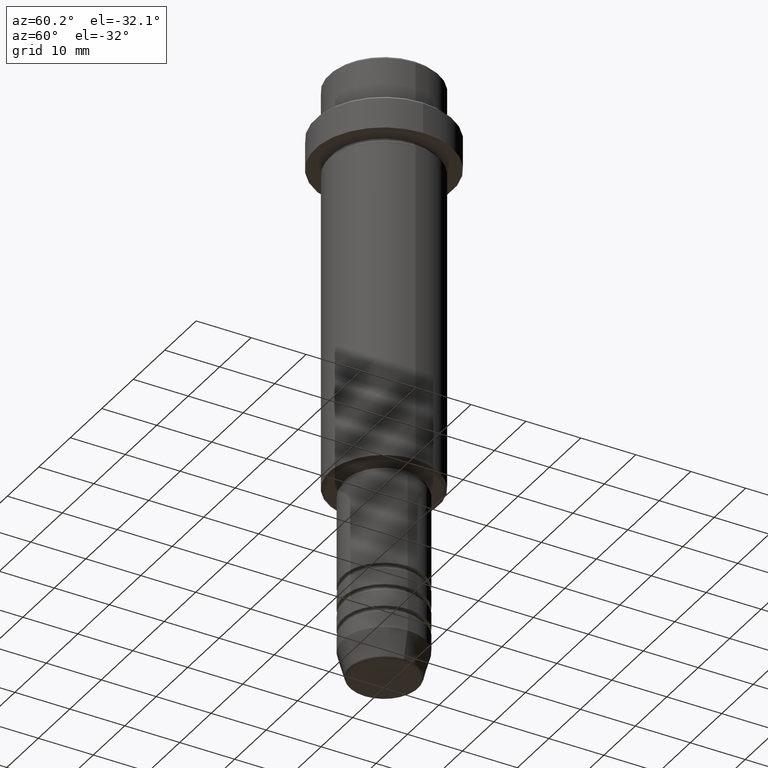
[diagram: clean part render]
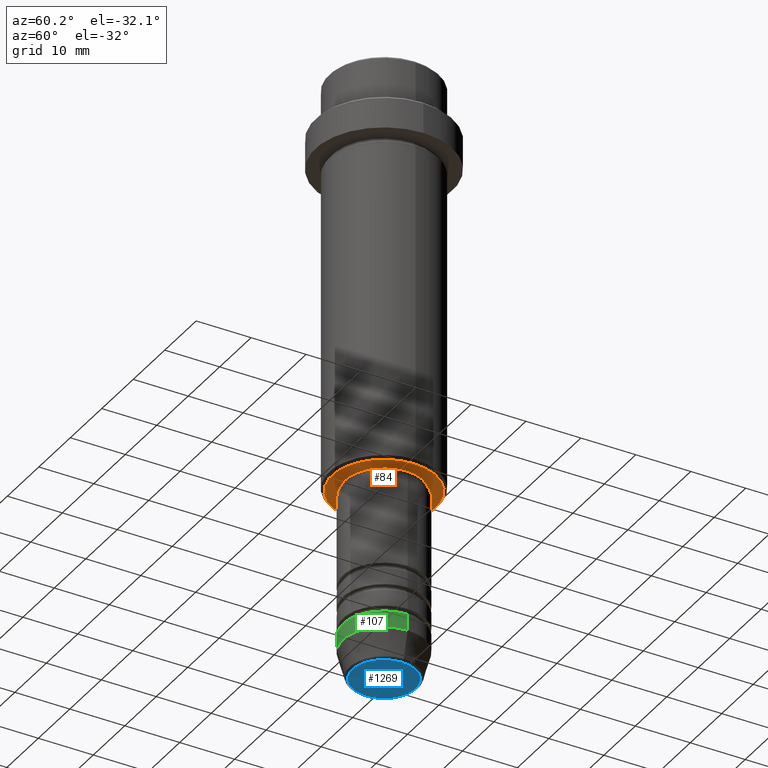
[diagram: same view with three faces highlighted in distinct colors, each labeled with its STEP entity id]
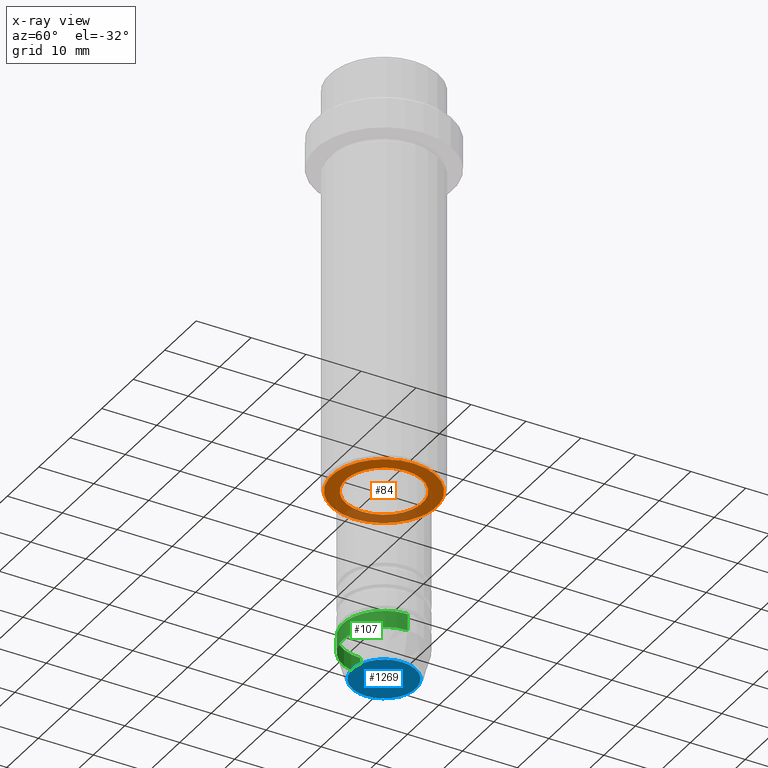
[diagram: x-ray of the same camera — body ghosted, the three highlighted faces saturated]
A machine part, auxiliary view with three faces highlighted in distinct colors.
The next image is the same camera in x-ray (body ghosted, the three faces saturated) — at least one of them is partly hidden behind the body in this view.
Their STEP definitions:

[orange] entity #84 — the highlighted planar face has unit normal (0, 0, -1).
#42 = DIRECTION ( 'NONE',  ( -1.000000000000000000, 0.000000000000000000, 0.000000000000000000 ) ) ;
#64 = AXIS2_PLACEMENT_3D ( 'NONE', #408, #655, #758 ) ;
#66 = ORIENTED_EDGE ( 'NONE', *, *, #178, .T. ) ;
#70 = EDGE_LOOP ( 'NONE', ( #617, #66 ) ) ;
#84 = ADVANCED_FACE ( 'NONE', ( #389, #1277 ), #175, .T. ) ;
#87 = CARTESIAN_POINT ( 'NONE',  ( 6.999999999999993783, 0.000000000000000000, -75.00000000000001421 ) ) ;
#175 = PLANE ( 'NONE',  #1318 ) ;
#178 = EDGE_CURVE ( 'NONE', #1312, #1246, #903, .T. ) ;
#213 = CIRCLE ( 'NONE', #64, 6.999999999999993783 ) ;
#274 = AXIS2_PLACEMENT_3D ( 'NONE', #442, #765, #426 ) ;
#278 = ORIENTED_EDGE ( 'NONE', *, *, #1368, .T. ) ;
#331 = EDGE_CURVE ( 'NONE', #1246, #1312, #944, .T. ) ;
#332 = DIRECTION ( 'NONE',  ( 0.000000000000000000, 0.000000000000000000, -1.000000000000000000 ) ) ;
#389 = FACE_OUTER_BOUND ( 'NONE', #70, .T. ) ;
#408 = CARTESIAN_POINT ( 'NONE',  ( 0.000000000000000000, 0.000000000000000000, -75.00000000000001421 ) ) ;
#413 = DIRECTION ( 'NONE',  ( -0.000000000000000000, -0.000000000000000000, 1.000000000000000000 ) ) ;
#424 = AXIS2_PLACEMENT_3D ( 'NONE', #1199, #413, #1087 ) ;
#426 = DIRECTION ( 'NONE',  ( -1.000000000000000000, 0.000000000000000000, 0.000000000000000000 ) ) ;
#438 = AXIS2_PLACEMENT_3D ( 'NONE', #1328, #332, #42 ) ;
#442 = CARTESIAN_POINT ( 'NONE',  ( 0.000000000000000000, 0.000000000000000000, -75.00000000000001421 ) ) ;
#502 = DIRECTION ( 'NONE',  ( 0.000000000000000000, 0.000000000000000000, -1.000000000000000000 ) ) ;
#588 = VERTEX_POINT ( 'NONE', #87 ) ;
#617 = ORIENTED_EDGE ( 'NONE', *, *, #331, .T. ) ;
#655 = DIRECTION ( 'NONE',  ( -0.000000000000000000, -0.000000000000000000, 1.000000000000000000 ) ) ;
#690 = CARTESIAN_POINT ( 'NONE',  ( -6.999999999999993783, 8.572527594031465301E-16, -75.00000000000001421 ) ) ;
#750 = CARTESIAN_POINT ( 'NONE',  ( -9.499999999999994671, 1.194030629168669075E-15, -75.00000000000001421 ) ) ;
#758 = DIRECTION ( 'NONE',  ( 1.000000000000000000, 0.000000000000000000, 0.000000000000000000 ) ) ;
#765 = DIRECTION ( 'NONE',  ( 0.000000000000000000, 0.000000000000000000, -1.000000000000000000 ) ) ;
#801 = CARTESIAN_POINT ( 'NONE',  ( 9.499999999999994671, 0.000000000000000000, -75.00000000000001421 ) ) ;
#903 = CIRCLE ( 'NONE', #274, 9.499999999999994671 ) ;
#935 = EDGE_LOOP ( 'NONE', ( #278, #1382 ) ) ;
#944 = CIRCLE ( 'NONE', #438, 9.499999999999994671 ) ;
#946 = DIRECTION ( 'NONE',  ( -1.000000000000000000, 0.000000000000000000, -0.000000000000000000 ) ) ;
#1048 = CIRCLE ( 'NONE', #424, 6.999999999999993783 ) ;
#1056 = CARTESIAN_POINT ( 'NONE',  ( 0.000000000000000000, 10.00000000000000000, -75.00000000000001421 ) ) ;
#1087 = DIRECTION ( 'NONE',  ( 1.000000000000000000, 0.000000000000000000, 0.000000000000000000 ) ) ;
#1145 = EDGE_CURVE ( 'NONE', #1280, #588, #1048, .T. ) ;
#1199 = CARTESIAN_POINT ( 'NONE',  ( 0.000000000000000000, 0.000000000000000000, -75.00000000000001421 ) ) ;
#1246 = VERTEX_POINT ( 'NONE', #801 ) ;
#1277 = FACE_BOUND ( 'NONE', #935, .T. ) ;
#1280 = VERTEX_POINT ( 'NONE', #690 ) ;
#1312 = VERTEX_POINT ( 'NONE', #750 ) ;
#1318 = AXIS2_PLACEMENT_3D ( 'NONE', #1056, #502, #946 ) ;
#1328 = CARTESIAN_POINT ( 'NONE',  ( 0.000000000000000000, 0.000000000000000000, -75.00000000000001421 ) ) ;
#1368 = EDGE_CURVE ( 'NONE', #588, #1280, #213, .T. ) ;
#1382 = ORIENTED_EDGE ( 'NONE', *, *, #1145, .T. ) ;

[blue] entity #1269 — the highlighted planar face has unit normal (0, -0, 1).
#30 = DIRECTION ( 'NONE',  ( 0.000000000000000000, 0.000000000000000000, -1.000000000000000000 ) ) ;
#41 = CIRCLE ( 'NONE', #634, 5.776590543854901227 ) ;
#125 = DIRECTION ( 'NONE',  ( 0.000000000000000000, -0.000000000000000000, 1.000000000000000000 ) ) ;
#148 = VERTEX_POINT ( 'NONE', #211 ) ;
#211 = CARTESIAN_POINT ( 'NONE',  ( 5.776590543854901227, 0.000000000000000000, -110.0000000000000142 ) ) ;
#320 = EDGE_LOOP ( 'NONE', ( #788, #469 ) ) ;
#334 = DIRECTION ( 'NONE',  ( 1.000000000000000000, 0.000000000000000000, 0.000000000000000000 ) ) ;
#436 = DIRECTION ( 'NONE',  ( 1.000000000000000000, 0.000000000000000000, 0.000000000000000000 ) ) ;
#445 = CIRCLE ( 'NONE', #820, 5.776590543854901227 ) ;
#469 = ORIENTED_EDGE ( 'NONE', *, *, #1211, .T. ) ;
#535 = AXIS2_PLACEMENT_3D ( 'NONE', #674, #125, #1001 ) ;
#556 = VERTEX_POINT ( 'NONE', #1155 ) ;
#634 = AXIS2_PLACEMENT_3D ( 'NONE', #785, #30, #334 ) ;
#674 = CARTESIAN_POINT ( 'NONE',  ( 0.000000000000000000, 0.000000000000000000, -110.0000000000000142 ) ) ;
#785 = CARTESIAN_POINT ( 'NONE',  ( 0.000000000000000000, 0.000000000000000000, -110.0000000000000142 ) ) ;
#788 = ORIENTED_EDGE ( 'NONE', *, *, #1198, .T. ) ;
#820 = AXIS2_PLACEMENT_3D ( 'NONE', #1112, #897, #436 ) ;
#890 = FACE_OUTER_BOUND ( 'NONE', #320, .T. ) ;
#897 = DIRECTION ( 'NONE',  ( 0.000000000000000000, 0.000000000000000000, -1.000000000000000000 ) ) ;
#1001 = DIRECTION ( 'NONE',  ( 1.000000000000000000, 0.000000000000000000, 0.000000000000000000 ) ) ;
#1112 = CARTESIAN_POINT ( 'NONE',  ( 0.000000000000000000, 0.000000000000000000, -110.0000000000000142 ) ) ;
#1155 = CARTESIAN_POINT ( 'NONE',  ( -5.776590543854901227, 7.370012612361440670E-16, -110.0000000000000142 ) ) ;
#1198 = EDGE_CURVE ( 'NONE', #148, #556, #445, .T. ) ;
#1211 = EDGE_CURVE ( 'NONE', #556, #148, #41, .T. ) ;
#1269 = ADVANCED_FACE ( 'NONE', ( #890 ), #1331, .F. ) ;
#1331 = PLANE ( 'NONE',  #535 ) ;

[green] entity #107 — the highlighted cylindrical surface (partial cylindrical patch) has radius 7.5 mm, axis along (-0, -0, 1).
#36 = VECTOR ( 'NONE', #168, 1000.000000000000000 ) ;
#93 = DIRECTION ( 'NONE',  ( 1.000000000000000000, 0.000000000000000000, 0.000000000000000000 ) ) ;
#95 = DIRECTION ( 'NONE',  ( 1.000000000000000000, 0.000000000000000000, 0.000000000000000000 ) ) ;
#107 = ADVANCED_FACE ( 'NONE', ( #760 ), #878, .T. ) ;
#168 = DIRECTION ( 'NONE',  ( -0.000000000000000000, -0.000000000000000000, 1.000000000000000000 ) ) ;
#196 = CARTESIAN_POINT ( 'NONE',  ( 0.000000000000000000, 0.000000000000000000, -102.0000000000000142 ) ) ;
#218 = DIRECTION ( 'NONE',  ( -0.000000000000000000, -0.000000000000000000, 1.000000000000000000 ) ) ;
#287 = CARTESIAN_POINT ( 'NONE',  ( 7.500000000000000000, 0.000000000000000000, -102.0000000000000142 ) ) ;
#355 = CIRCLE ( 'NONE', #887, 7.500000000000000000 ) ;
#360 = CARTESIAN_POINT ( 'NONE',  ( 7.500000000000000000, 0.000000000000000000, 0.000000000000000000 ) ) ;
#377 = DIRECTION ( 'NONE',  ( -0.000000000000000000, -0.000000000000000000, 1.000000000000000000 ) ) ;
#428 = VERTEX_POINT ( 'NONE', #501 ) ;
#456 = EDGE_CURVE ( 'NONE', #1228, #680, #1360, .T. ) ;
#481 = AXIS2_PLACEMENT_3D ( 'NONE', #1310, #218, #93 ) ;
#496 = CARTESIAN_POINT ( 'NONE',  ( 0.000000000000000000, 0.000000000000000000, -105.0000000000000142 ) ) ;
#498 = VERTEX_POINT ( 'NONE', #287 ) ;
#501 = CARTESIAN_POINT ( 'NONE',  ( 7.500000000000000000, 0.000000000000000000, -105.0000000000000142 ) ) ;
#570 = EDGE_CURVE ( 'NONE', #1228, #428, #794, .T. ) ;
#593 = ORIENTED_EDGE ( 'NONE', *, *, #844, .T. ) ;
#646 = DIRECTION ( 'NONE',  ( -0.000000000000000000, -0.000000000000000000, 1.000000000000000000 ) ) ;
#659 = EDGE_LOOP ( 'NONE', ( #921, #1120, #593, #685 ) ) ;
#680 = VERTEX_POINT ( 'NONE', #1097 ) ;
#685 = ORIENTED_EDGE ( 'NONE', *, *, #1413, .F. ) ;
#686 = LINE ( 'NONE', #360, #1086 ) ;
#723 = CARTESIAN_POINT ( 'NONE',  ( -7.500000000000000000, 9.184850993605147944E-16, 0.000000000000000000 ) ) ;
#760 = FACE_OUTER_BOUND ( 'NONE', #659, .T. ) ;
#769 = AXIS2_PLACEMENT_3D ( 'NONE', #496, #377, #1262 ) ;
#792 = CARTESIAN_POINT ( 'NONE',  ( -7.500000000000000000, 9.184850993605147944E-16, -105.0000000000000142 ) ) ;
#794 = CIRCLE ( 'NONE', #769, 7.500000000000000000 ) ;
#844 = EDGE_CURVE ( 'NONE', #428, #498, #686, .T. ) ;
#878 = CYLINDRICAL_SURFACE ( 'NONE', #481, 7.500000000000000000 ) ;
#887 = AXIS2_PLACEMENT_3D ( 'NONE', #196, #646, #95 ) ;
#921 = ORIENTED_EDGE ( 'NONE', *, *, #456, .F. ) ;
#1086 = VECTOR ( 'NONE', #1121, 1000.000000000000000 ) ;
#1097 = CARTESIAN_POINT ( 'NONE',  ( -7.500000000000000000, 9.184850993605147944E-16, -102.0000000000000142 ) ) ;
#1120 = ORIENTED_EDGE ( 'NONE', *, *, #570, .T. ) ;
#1121 = DIRECTION ( 'NONE',  ( -0.000000000000000000, -0.000000000000000000, 1.000000000000000000 ) ) ;
#1228 = VERTEX_POINT ( 'NONE', #792 ) ;
#1262 = DIRECTION ( 'NONE',  ( 1.000000000000000000, 0.000000000000000000, 0.000000000000000000 ) ) ;
#1310 = CARTESIAN_POINT ( 'NONE',  ( 0.000000000000000000, 0.000000000000000000, 0.000000000000000000 ) ) ;
#1360 = LINE ( 'NONE', #723, #36 ) ;
#1413 = EDGE_CURVE ( 'NONE', #680, #498, #355, .T. ) ;